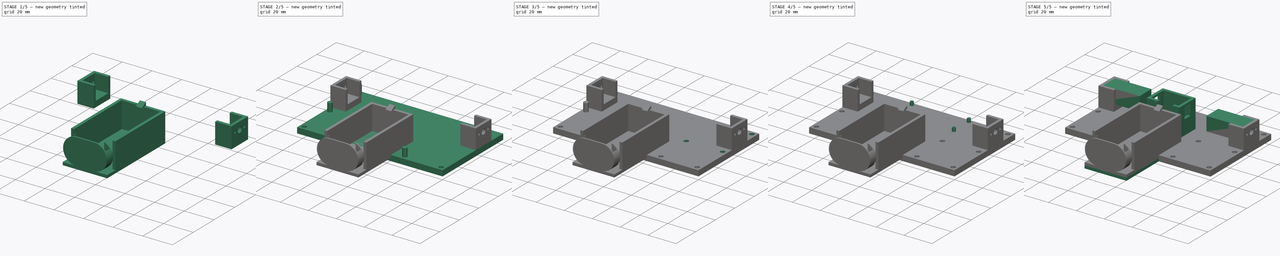
[diagram: build sequence overview — one tinted view per stage of 5, left to right]
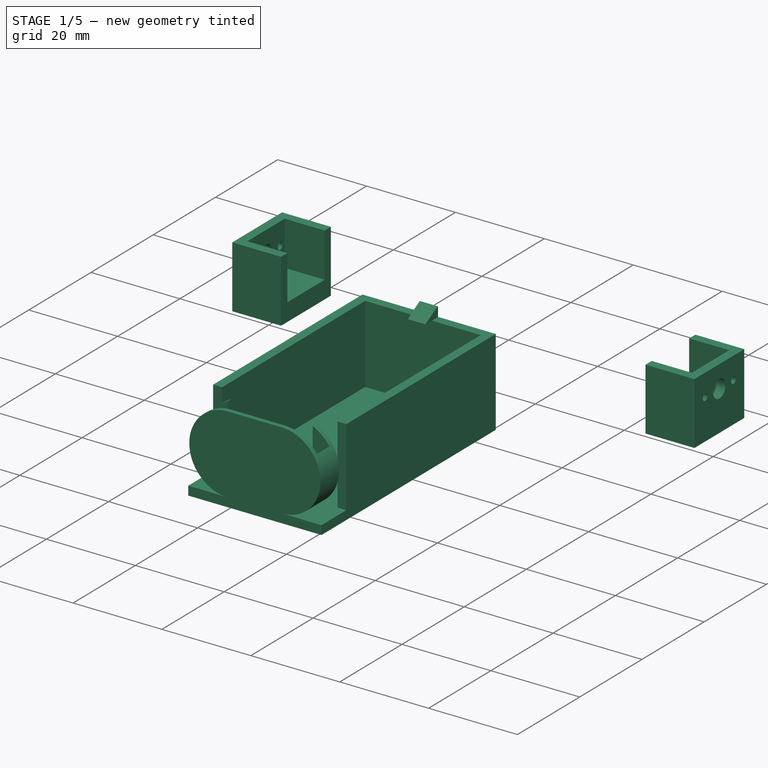
[diagram: stage 1 of 5 — iso view after this stage's code; geometry added in this stage tinted green]
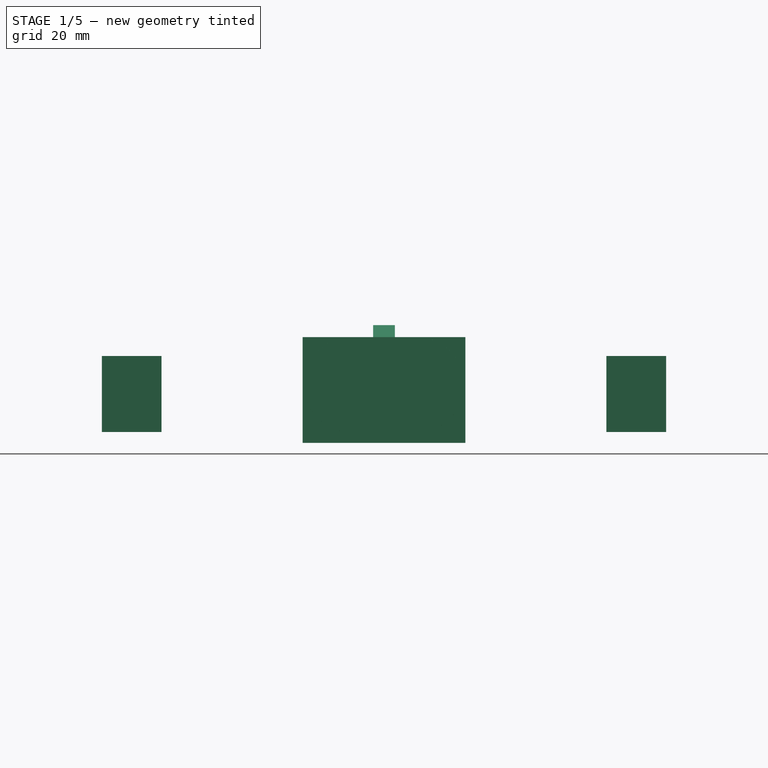
[diagram: stage 1 of 5 — front view after this stage's code; geometry added in this stage tinted green]
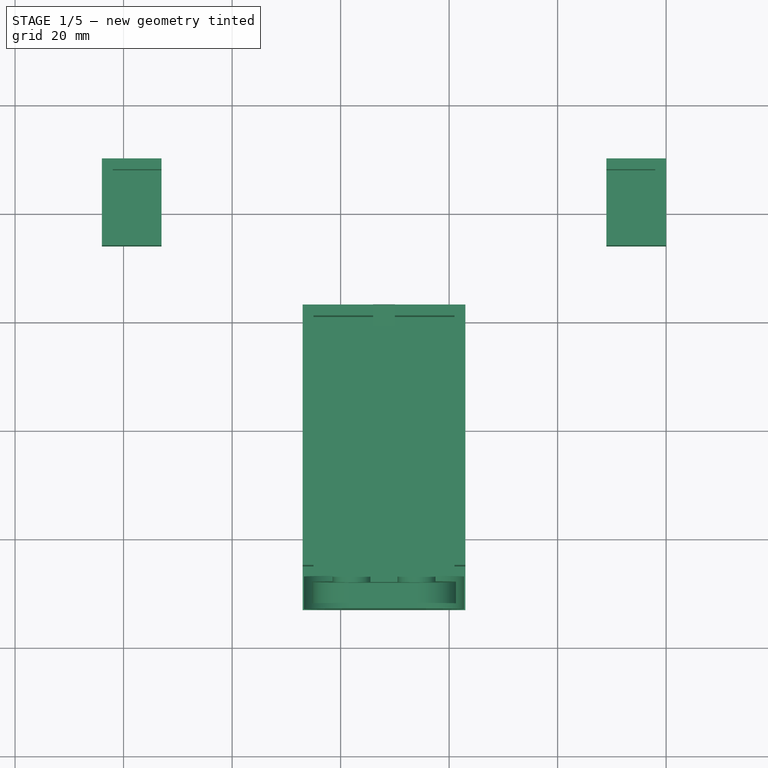
[diagram: stage 1 of 5 — top view after this stage's code; geometry added in this stage tinted green]
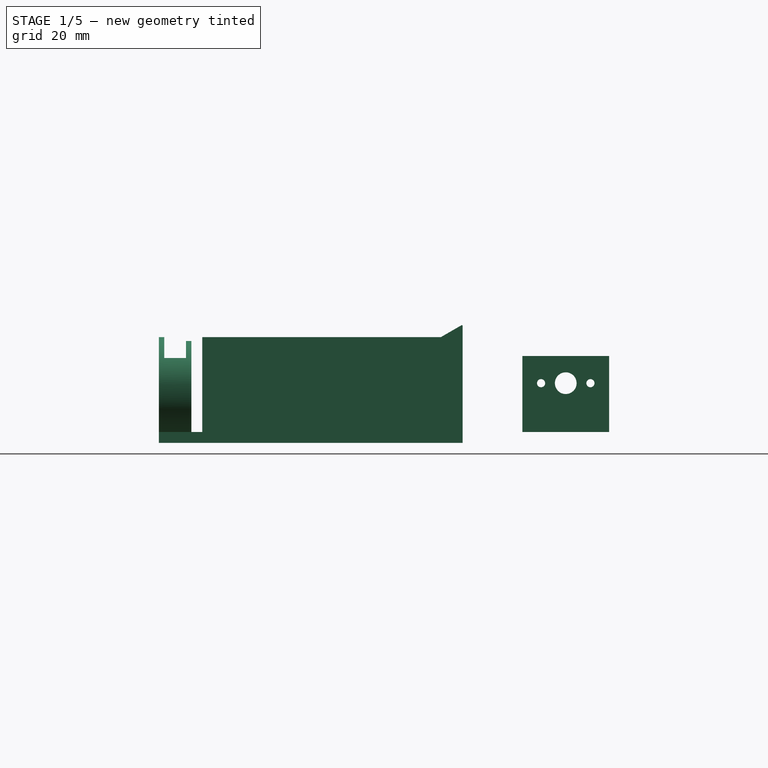
[diagram: stage 1 of 5 — right view after this stage's code; geometry added in this stage tinted green]
FCSTD DOCUMENT  (FreeCAD 1.0R39319 (Git))
Label: Primary Platform
License: All rights reserved
LicenseURL: https://en.wikipedia.org/wiki/All_rights_reserved
objects: Part::Cut×11, Part::Cylinder×10, Part::Box×7, Part::MultiFuse×6, Sketcher::SketchObject×2, Part::Extrusion×2, Part::FeaturePython×2, Part::Fuse×1, Part::Mirroring×1
note: 44 computed .brp shape members not serialized (recipe doc carries the construction recipe); baked Part::Feature solids carry a one-line shape summary decoded from their .brp

FEATURE [Sketcher::SketchObject] Sketch003
  ArcFitTolerance = 1e-06
  FullyConstrained = true
  MakeInternals = false
  sketch-geometry (7):
    g0: LineSegment StartX=0 StartY=0 StartZ=0 EndX=12 EndY=0 EndZ=0
    g1: LineSegment StartX=12 StartY=0 StartZ=0 EndX=12 EndY=16 EndZ=0
    g2: LineSegment StartX=12 StartY=16 StartZ=0 EndX=0 EndY=16 EndZ=0
    g3: LineSegment StartX=0 StartY=16 StartZ=0 EndX=0 EndY=0 EndZ=0
    g4: Circle CenterX=7 CenterY=8 CenterZ=0 NormalX=0 NormalY=0 NormalZ=1 AngleXU=0 Radius=2
    g5: Circle CenterX=7 CenterY=3.45 CenterZ=0 NormalX=0 NormalY=0 NormalZ=1 AngleXU=0 Radius=0.75
    g6: Circle CenterX=7 CenterY=12.55 CenterZ=0 NormalX=0 NormalY=0 NormalZ=1 AngleXU=0 Radius=0.75
  constraints (19):
    c: Coincident(g0,g1)
    c: Coincident(g1,g2)
    c: Coincident(g2,g3)
    c: Coincident(g3,g0)
    c: Horizontal(g0)
    c: Horizontal(g2)
    c: Vertical(g1)
    c: Vertical(g3)
    c: Distance(g1,g3) = 12
    c: Distance(g0,g2) = 16
    c: Coincident(g0,g-1)
    c: Diameter(g4) = 4
    c: Distance(g4,g3) = 7
    c: Distance(g4,g0) = 8
    c: Diameter(g5) = 1.5
    c: Diameter(g6) = 1.5
    c: Vertical(g5,g4)
    c: Distance(g6,g2) = 3.45
    c: Symmetric(g5,g6,g4)
FEATURE [Part::Extrusion] Extrude003
  Base = -> Sketch003
  Dir = (0,0,1)
  DirMode = 2
  FaceMakerClass = Part::FaceMakerBullseye
  FaceMakerMode = 3
  LengthFwd = 11
  LengthRev = 0
  Solid = true
  Symmetric = false
FEATURE [Part::Box] Box002  label="Cube002"
  AttacherType = Attacher::AttachEngine3D
  Height = 30
  Length = 12
  Placement = pos=(2,2,2) rot=(0,0,1;0rad)
  Width = 12
FEATURE [Part::Cut] Cut013  label="MotorMount"
  Base = -> Extrude003
  Placement = pos=(0,23,6) rot=(0,-1,0;1.5708rad)
  Tool = -> Box002
FEATURE [Part::Box] Box  label="Motor Platform"
  AttacherType = Attacher::AttachEngine3D
  Height = 2
  Length = 11
  Placement = pos=(-11,23,4) rot=(0,0,1;0rad)
  Width = 16
FEATURE [Part::Fuse] Fusion  label="Motor"
  Base = -> Cut013
  Placement = pos=(0,11,0) rot=(0,0,1;0rad)
  Tool = -> Box
FEATURE [Part::Mirroring] Part__Mirroring  label="Motor (Mirror #1)"
  Base = (-52,0,0)
  Normal = (1,0,0)
  Source = -> Fusion
FEATURE [Part::MultiFuse] Fusion005  label="Motors"
  Shapes = -> [Fusion,Part__Mirroring]
FEATURE [Part::FeaturePython] Clone002  label="Battery Holder"  # WARN: FeaturePython — macro-defined, semantics opaque (R4)
  AttacherType = Attacher::AttachEngine3D
  Fuse = false
  Placement = pos=(-52,-33,4) rot=(0,0,1;0rad)
  Scale = (1,1,1)
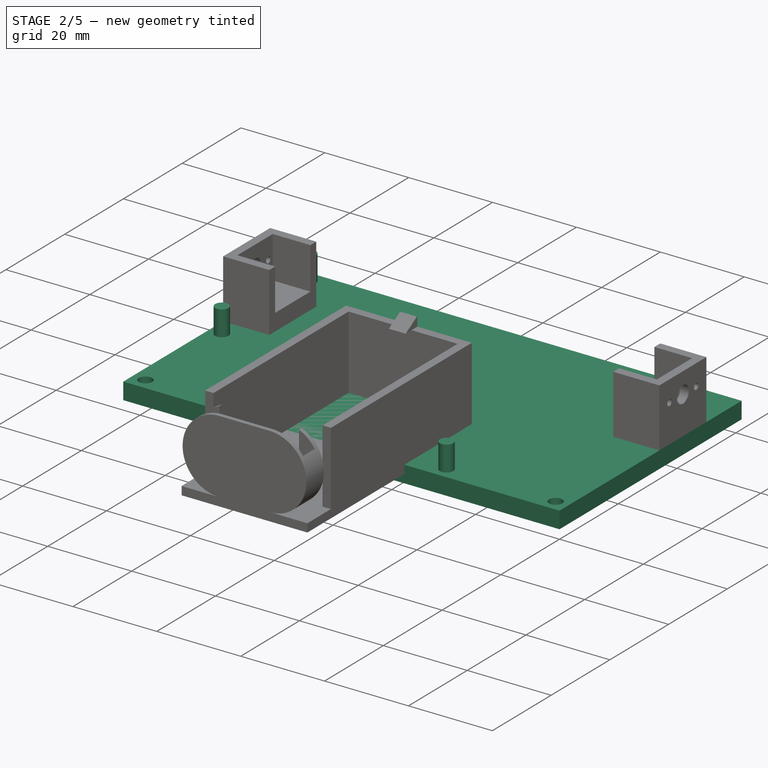
[diagram: stage 2 of 5 — iso view after this stage's code; geometry added in this stage tinted green]
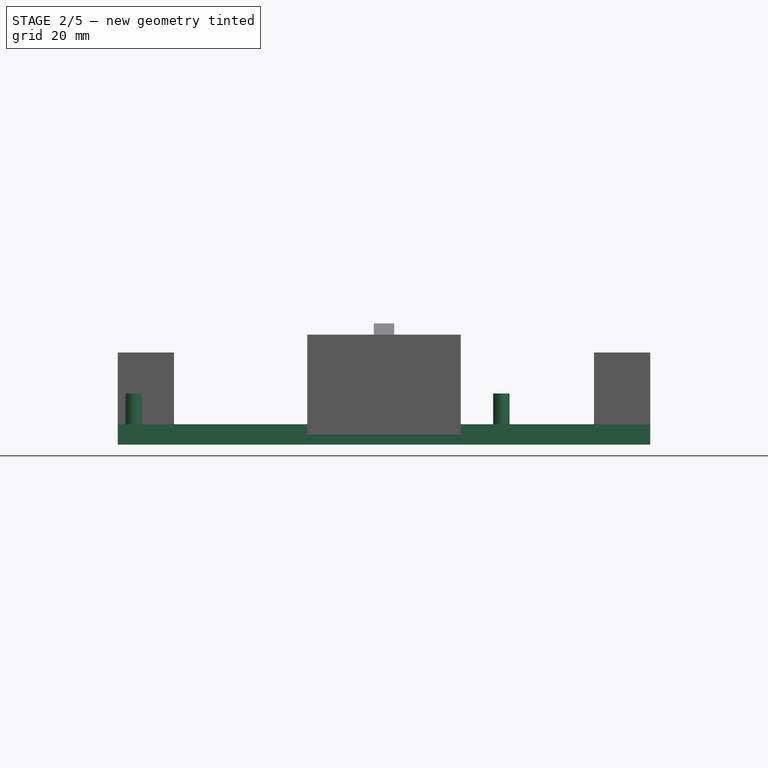
[diagram: stage 2 of 5 — front view after this stage's code; geometry added in this stage tinted green]
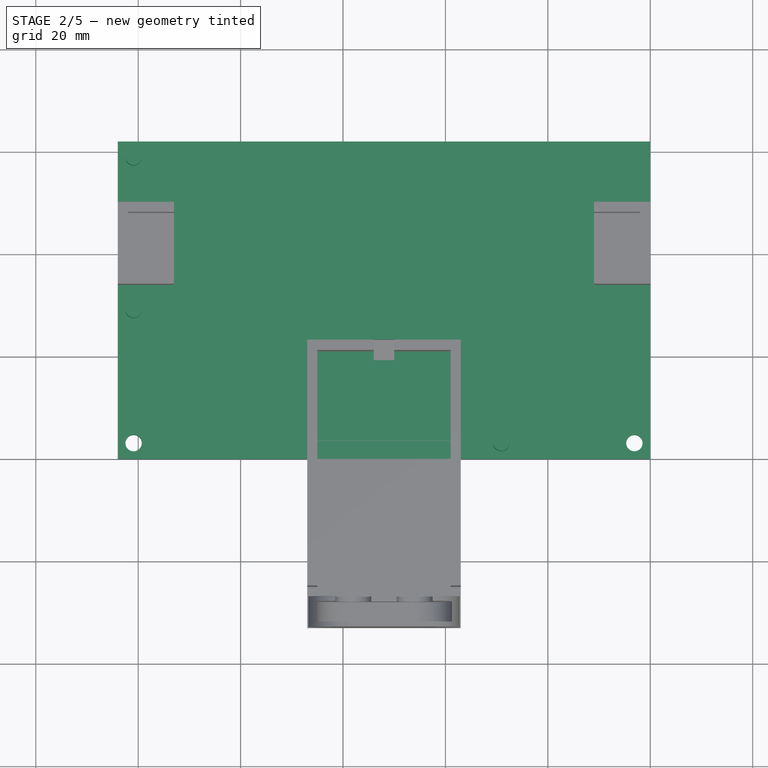
[diagram: stage 2 of 5 — top view after this stage's code; geometry added in this stage tinted green]
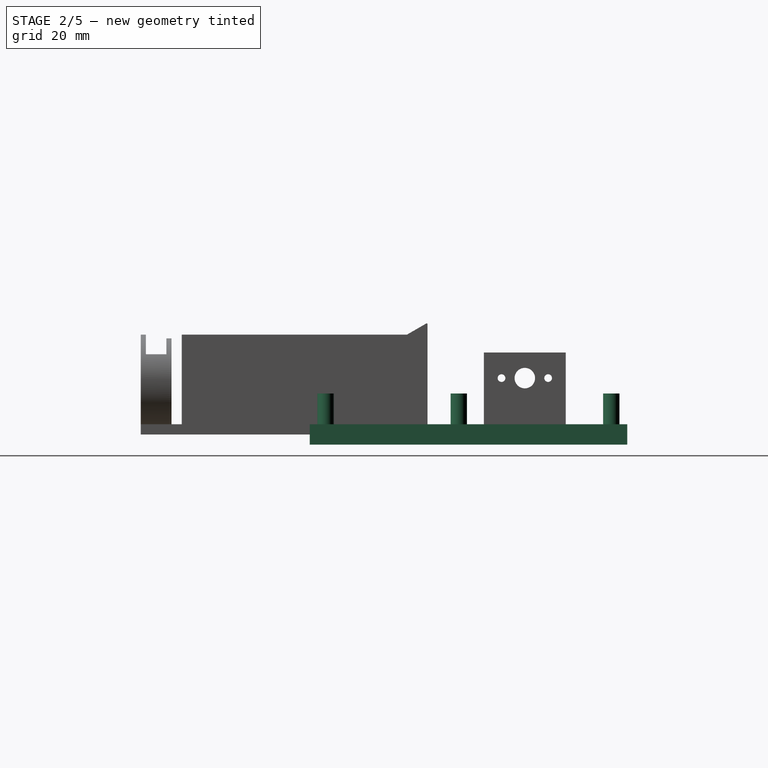
[diagram: stage 2 of 5 — right view after this stage's code; geometry added in this stage tinted green]
FEATURE [Part::Box] Box001  label="Cube001"
  AttacherType = Attacher::AttachEngine3D
  Height = 4
  Length = 104
  Placement = pos=(-104,0,0) rot=(0,0,1;0rad)
  Width = 62
FEATURE [Part::Cylinder] Cylinder004  label="Mount Point"
  Angle = 360
  AttacherType = Attacher::AttachEngine3D
  FirstAngle = 0
  Height = 10
  Placement = pos=(-3.1,3.1,0) rot=(0,0,1;0rad)
  Radius = 1.6
  SecondAngle = 0
FEATURE [Part::Cylinder] Cylinder005  label="Mount Point001"
  Angle = 360
  AttacherType = Attacher::AttachEngine3D
  FirstAngle = 0
  Height = 10
  Placement = pos=(-100.9,3.1,0) rot=(0,0,1;0rad)
  Radius = 1.6
  SecondAngle = 0
FEATURE [Part::Cylinder] Cylinder006  label="Mount Point002"
  Angle = 360
  AttacherType = Attacher::AttachEngine3D
  FirstAngle = 0
  Height = 10
  Placement = pos=(-100.9,58.9,0) rot=(0,0,1;0rad)
  Radius = 1.6
  SecondAngle = 0
FEATURE [Part::Cut] Cut005
  Base = -> Box001
  Tool = -> Cylinder004
FEATURE [Part::Cut] Cut006
  Base = -> Cut005
  Tool = -> Cylinder005
FEATURE [Part::Cylinder] Cylinder008  label="Mount Point004"
  Angle = 360
  AttacherType = Attacher::AttachEngine3D
  FirstAngle = 0
  Height = 10
  Placement = pos=(-29.1,3.1,0) rot=(0,0,1;0rad)
  Radius = 1.6
  SecondAngle = 0
FEATURE [Part::Cylinder] Cylinder011  label="Mount Point007"
  Angle = 360
  AttacherType = Attacher::AttachEngine3D
  FirstAngle = 0
  Height = 10
  Placement = pos=(-100.9,29.1,0) rot=(0,0,1;0rad)
  Radius = 1.6
  SecondAngle = 0
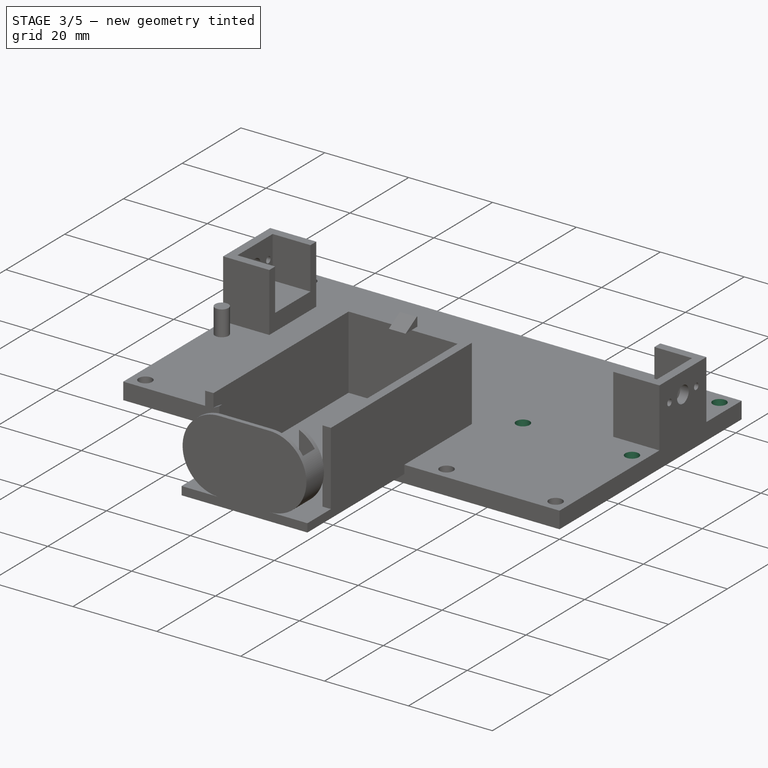
[diagram: stage 3 of 5 — iso view after this stage's code; geometry added in this stage tinted green]
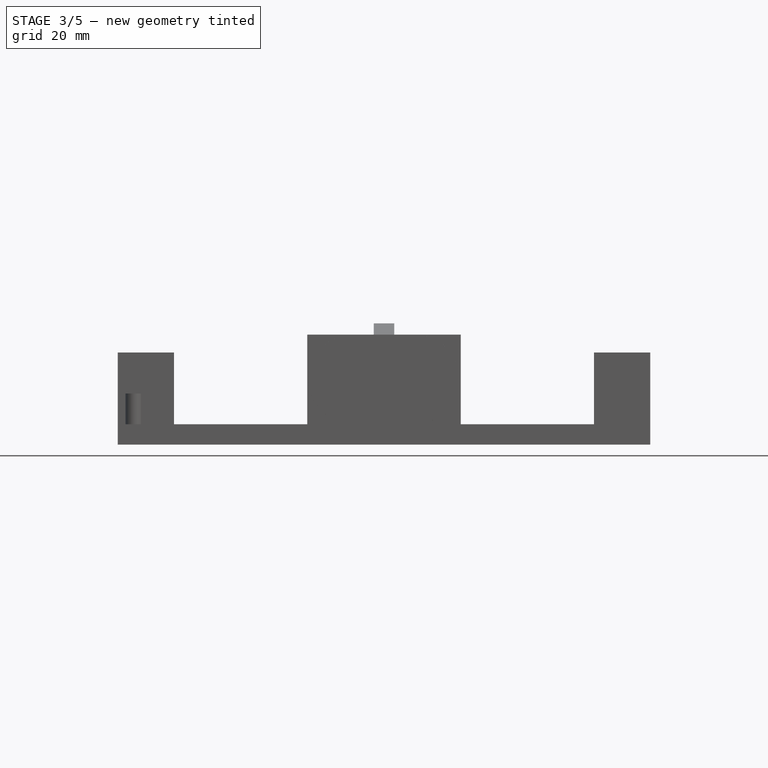
[diagram: stage 3 of 5 — front view after this stage's code; geometry added in this stage tinted green]
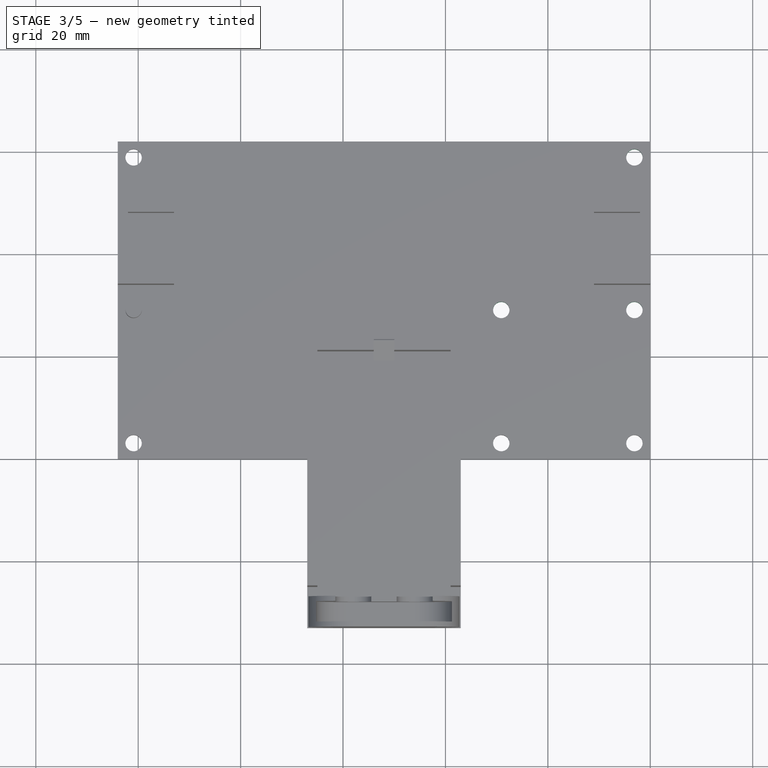
[diagram: stage 3 of 5 — top view after this stage's code; geometry added in this stage tinted green]
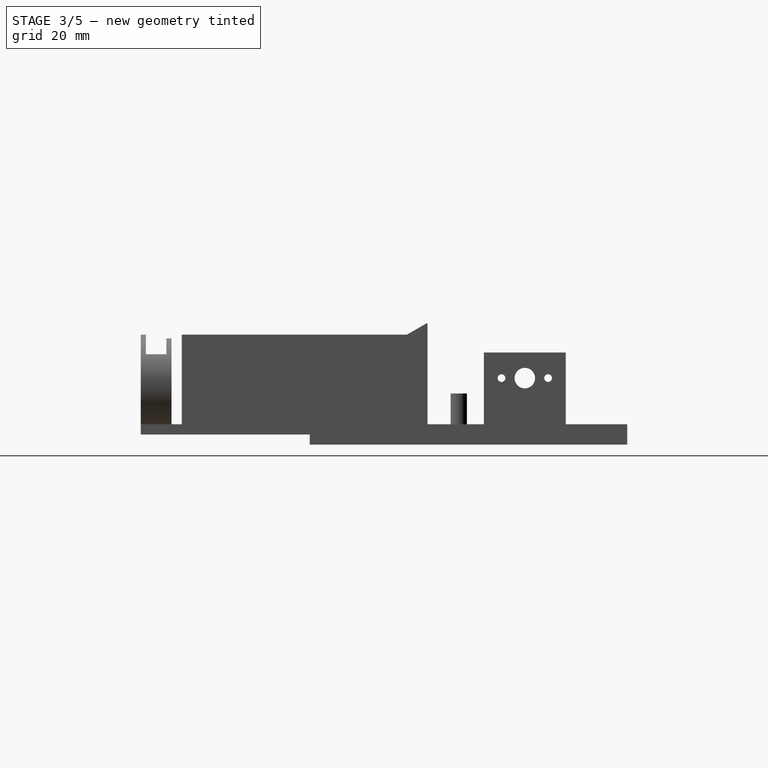
[diagram: stage 3 of 5 — right view after this stage's code; geometry added in this stage tinted green]
FEATURE [Part::Cylinder] Cylinder007  label="Mount Point003"
  Angle = 360
  AttacherType = Attacher::AttachEngine3D
  FirstAngle = 0
  Height = 10
  Placement = pos=(-3.1,58.9,0) rot=(0,0,1;0rad)
  Radius = 1.6
  SecondAngle = 0
FEATURE [Part::Cut] Cut007
  Base = -> Cut006
  Tool = -> Cylinder006
FEATURE [Part::Cut] Cut008  label="Standard Platform"
  Base = -> Cut007
  Tool = -> Cylinder007
FEATURE [Part::Cylinder] Cylinder009  label="Mount Point005"
  Angle = 360
  AttacherType = Attacher::AttachEngine3D
  FirstAngle = 0
  Height = 10
  Placement = pos=(-29.1,29.1,0) rot=(0,0,1;0rad)
  Radius = 1.6
  SecondAngle = 0
FEATURE [Part::Cylinder] Cylinder010  label="Mount Point006"
  Angle = 360
  AttacherType = Attacher::AttachEngine3D
  FirstAngle = 0
  Height = 10
  Placement = pos=(-3.1,29.1,0) rot=(0,0,1;0rad)
  Radius = 1.6
  SecondAngle = 0
FEATURE [Part::Cut] Cut
  Base = -> Cut008
  Tool = -> Cylinder008
FEATURE [Part::Cut] Cut014
  Base = -> Cut
  Tool = -> Cylinder010
FEATURE [Part::Cut] Cut015
  Base = -> Cut014
  Tool = -> Cylinder009
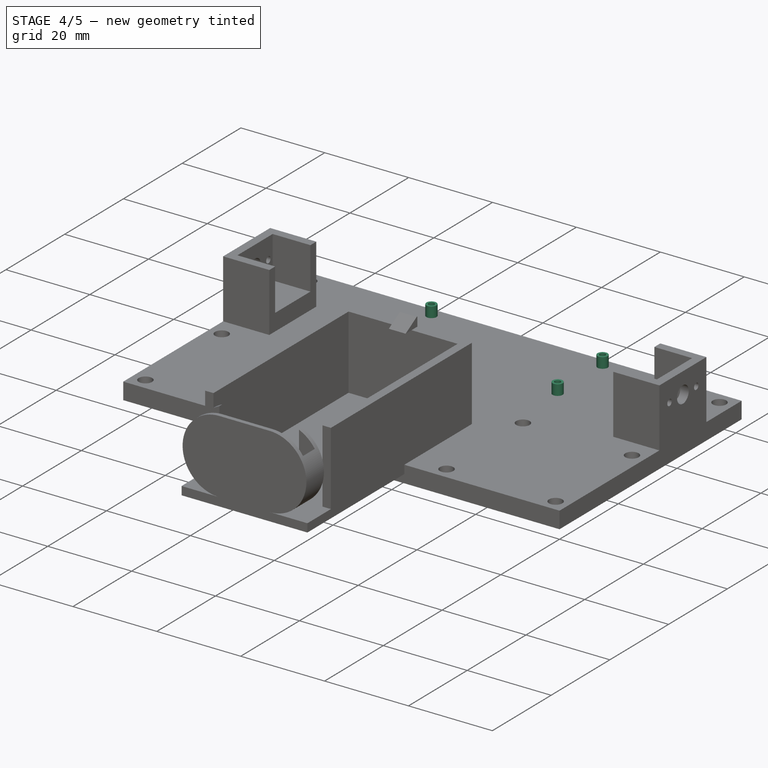
[diagram: stage 4 of 5 — iso view after this stage's code; geometry added in this stage tinted green]
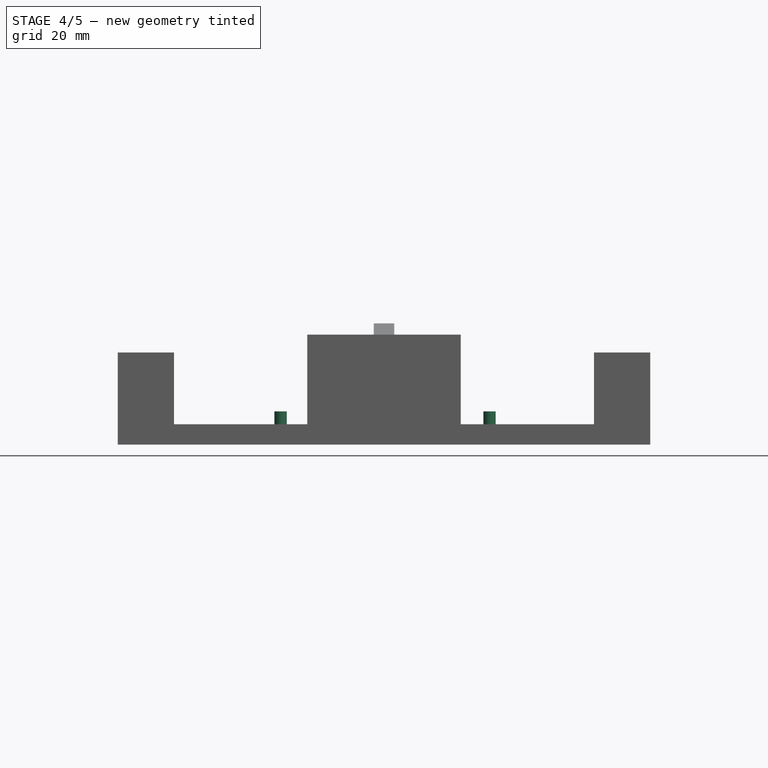
[diagram: stage 4 of 5 — front view after this stage's code; geometry added in this stage tinted green]
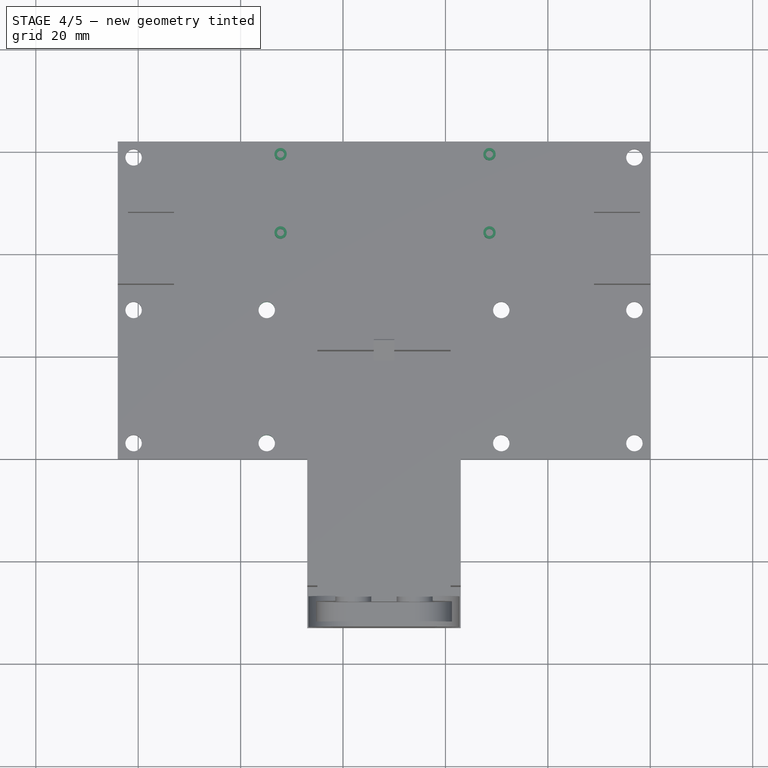
[diagram: stage 4 of 5 — top view after this stage's code; geometry added in this stage tinted green]
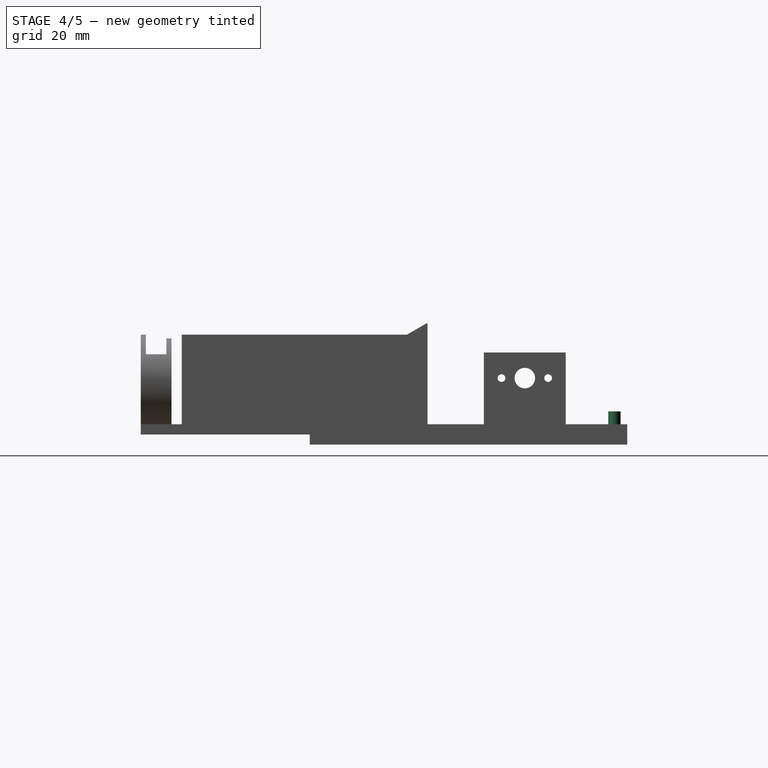
[diagram: stage 4 of 5 — right view after this stage's code; geometry added in this stage tinted green]
FEATURE [Sketcher::SketchObject] Sketch004
  ArcFitTolerance = 1e-06
  FullyConstrained = true
  MakeInternals = false
  sketch-geometry (8):
    g0: Circle CenterX=16.5 CenterY=1.2 CenterZ=0 NormalX=0 NormalY=0 NormalZ=1 AngleXU=0 Radius=0.7
    g1: Circle CenterX=16.5 CenterY=1.2 CenterZ=0 NormalX=0 NormalY=0 NormalZ=1 AngleXU=0 Radius=1.2
    g2: Circle CenterX=1.2 CenterY=1.2 CenterZ=0 NormalX=0 NormalY=0 NormalZ=1 AngleXU=0 Radius=0.7
    g3: Circle CenterX=1.2 CenterY=1.2 CenterZ=0 NormalX=0 NormalY=0 NormalZ=1 AngleXU=0 Radius=1.2
    g4: Circle CenterX=1.2 CenterY=42 CenterZ=0 NormalX=0 NormalY=0 NormalZ=1 AngleXU=0 Radius=0.7
    g5: Circle CenterX=1.2 CenterY=42 CenterZ=0 NormalX=0 NormalY=0 NormalZ=1 AngleXU=0 Radius=1.2
    g6: Circle CenterX=16.5 CenterY=42 CenterZ=0 NormalX=0 NormalY=0 NormalZ=1 AngleXU=0 Radius=0.7
    g7: Circle CenterX=16.5 CenterY=42 CenterZ=0 NormalX=0 NormalY=0 NormalZ=1 AngleXU=0 Radius=1.2
  constraints (20):
    c: Diameter(g0) = 1.4
    c: Diameter(g1) = 2.4
    c: Coincident(g1,g0)
    c: Diameter(g2) = 1.4
    c: Diameter(g3) = 2.4
    c: Coincident(g3,g2)
    c: Horizontal(g2,g0)
    c: Diameter(g4) = 1.4
    c: Diameter(g5) = 2.4
    c: Coincident(g5,g4)
    c: Diameter(g6) = 1.4
    c: Diameter(g7) = 2.4
    c: Coincident(g7,g6)
    c: Vertical(g6,g0)
    c: Horizontal(g4,g6)
    c: Vertical(g4,g2)
    c: DistanceX(g4,g6) = 15.3
    c: DistanceY(g0,g6) = 40.8
    c: Distance(g2,g-1) = 1.2
    c: Distance(g2,g-2) = 1.2
FEATURE [Part::Extrusion] Extrude004
  Base = -> Sketch004
  Dir = (0,0,1)
  DirMode = 2
  FaceMakerClass = Part::FaceMakerBullseye
  FaceMakerMode = 3
  LengthFwd = 2.5
  LengthRev = 0
  Solid = true
  Symmetric = false
FEATURE [Part::Box] Box003  label="Base"
  AttacherType = Attacher::AttachEngine3D
  Height = 2
  Length = 17.7
  Placement = pos=(0,0,-2) rot=(0,0,1;0rad)
  Width = 43.6
FEATURE [Part::MultiFuse] Fusion002  label="Arduino Mount"
  Placement = pos=(-30.2,43,4) rot=(0,0,1;1.5708rad)
  Shapes = -> [Extrude004,Box003]
FEATURE [Part::Cylinder] Cylinder012  label="Mount Point008"
  Angle = 360
  AttacherType = Attacher::AttachEngine3D
  FirstAngle = 0
  Height = 10
  Placement = pos=(-74.9,29.1,0) rot=(0,0,1;0rad)
  Radius = 1.6
  SecondAngle = 0
FEATURE [Part::Cylinder] Cylinder013  label="Mount Point009"
  Angle = 360
  AttacherType = Attacher::AttachEngine3D
  FirstAngle = 0
  Height = 10
  Placement = pos=(-74.9,3.1,0) rot=(0,0,1;0rad)
  Radius = 1.6
  SecondAngle = 0
FEATURE [Part::Cut] Cut016
  Base = -> Cut015
  Tool = -> Cylinder011
FEATURE [Part::Cut] Cut017
  Base = -> Cut016
  Tool = -> Cylinder013
FEATURE [Part::Cut] Cut018  label="Platform With H Bridge Holes"
  Base = -> Cut017
  Tool = -> Cylinder012
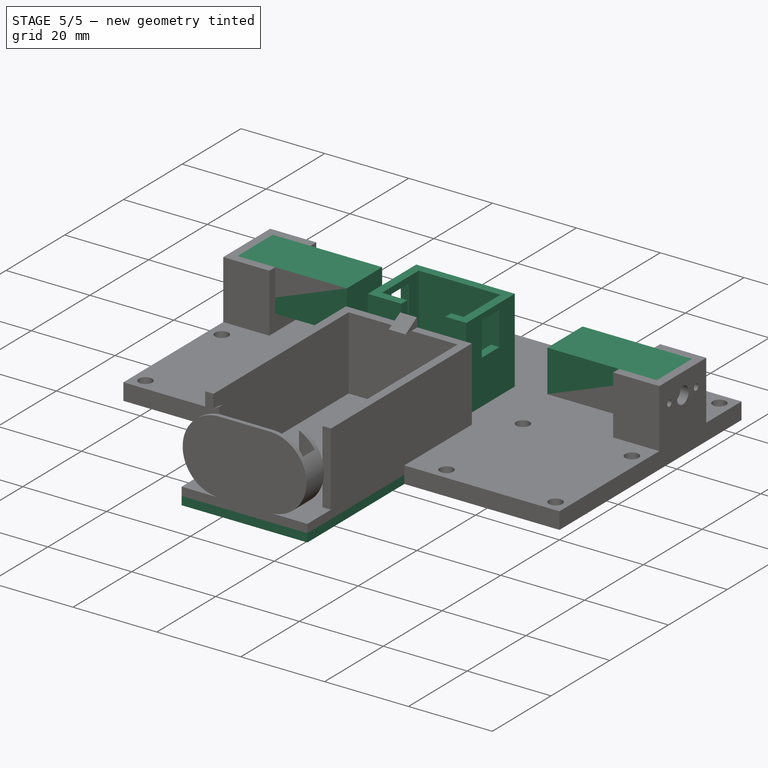
[diagram: stage 5 of 5 — iso view after this stage's code; geometry added in this stage tinted green]
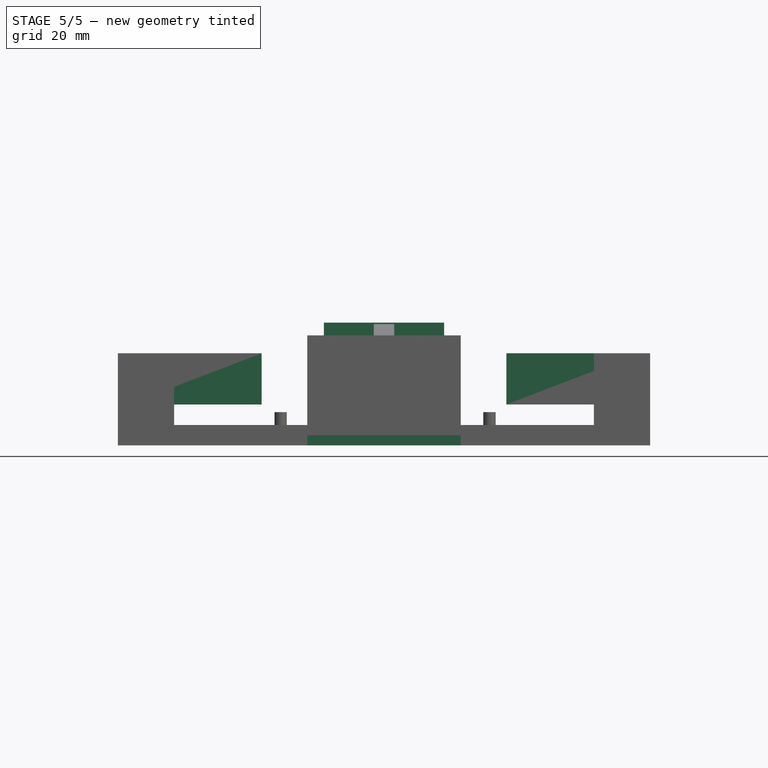
[diagram: stage 5 of 5 — front view after this stage's code; geometry added in this stage tinted green]
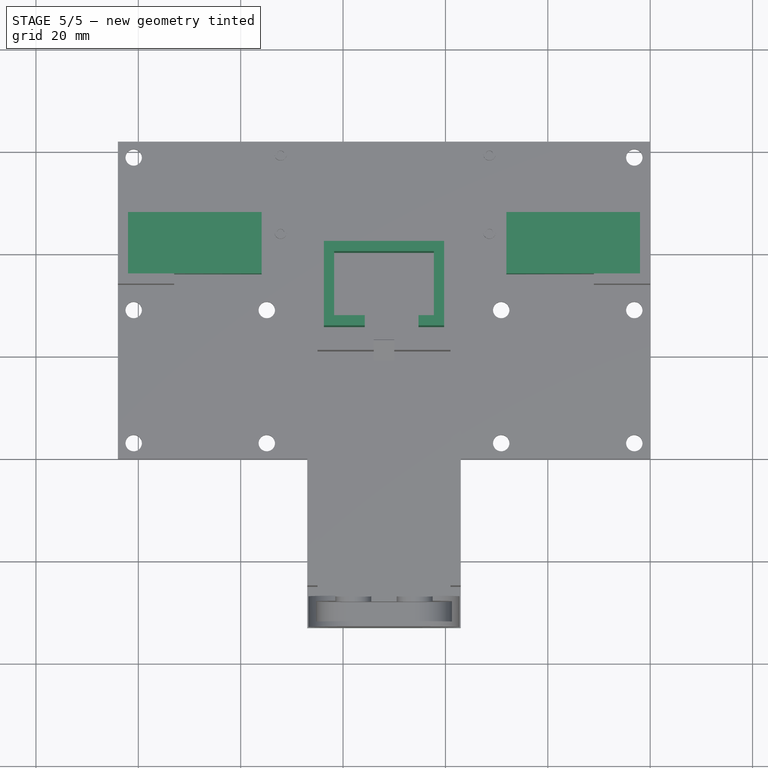
[diagram: stage 5 of 5 — top view after this stage's code; geometry added in this stage tinted green]
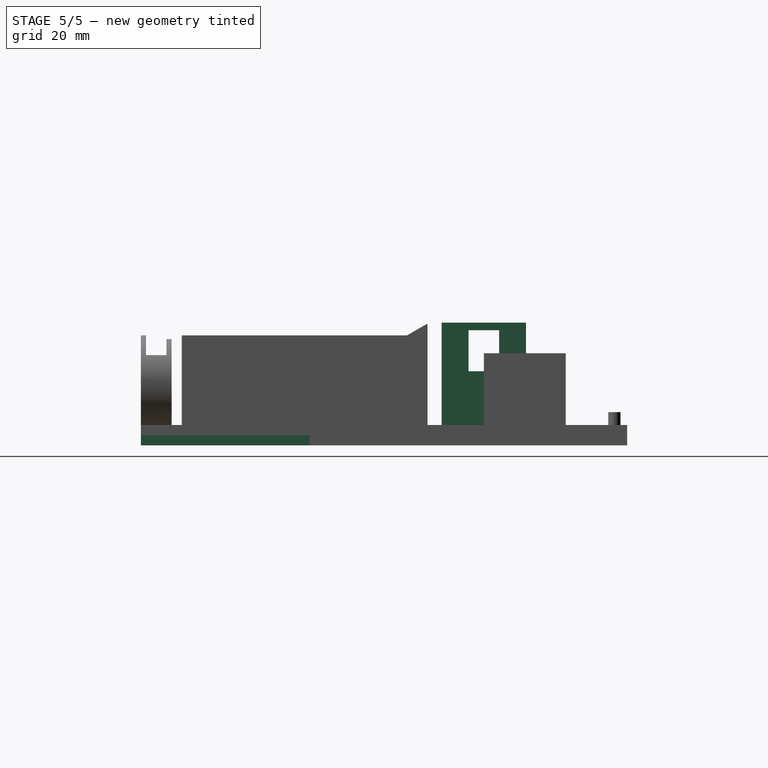
[diagram: stage 5 of 5 — right view after this stage's code; geometry added in this stage tinted green]
FEATURE [Part::Box] Box004  label="Motor001"
  AttacherType = Attacher::AttachEngine3D
  Height = 10
  Length = 26.1
  Placement = pos=(-28.1,36,8) rot=(0,0,1;0rad)
  Width = 12
FEATURE [Part::Box] Box005  label="Motor002"
  AttacherType = Attacher::AttachEngine3D
  Height = 10
  Length = 26.1
  Placement = pos=(-102,36,8) rot=(0,0,1;0rad)
  Width = 12
FEATURE [Part::FeaturePython] Clone001  label="Switch Holder001"  # WARN: FeaturePython — macro-defined, semantics opaque (R4)
  AttacherType = Attacher::AttachEngine3D
  Fuse = false
  Placement = pos=(-52,34,4) rot=(0,0,1;1.5708rad)
  Scale = (1,1,1)
FEATURE [Part::Box] Box006  label="Cube"
  AttacherType = Attacher::AttachEngine3D
  Height = 2
  Length = 30
  Placement = pos=(-67,-33,0) rot=(0,0,1;0rad)
  Width = 33
FEATURE [Part::MultiFuse] Fusion003  label="Platform With Arduino"
  Shapes = -> [Fusion002,Cut018]
FEATURE [Part::MultiFuse] Fusion006  label="Platform With Motors"
  Shapes = -> [Fusion005,Fusion003]
FEATURE [Part::MultiFuse] Fusion007  label="Platform with Switch Holder"
  Shapes = -> [Fusion006,Clone001]
FEATURE [Part::MultiFuse] Fusion008  label="Primary Platform"
  Shapes = -> [Box006,Fusion007,Clone002]
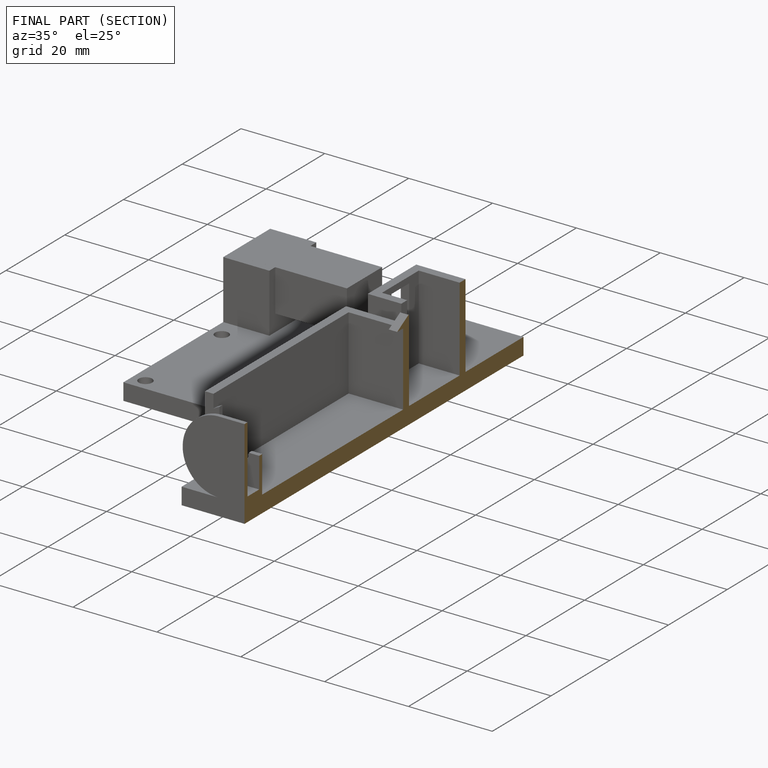
[diagram: finished part — half-section view (interior)]
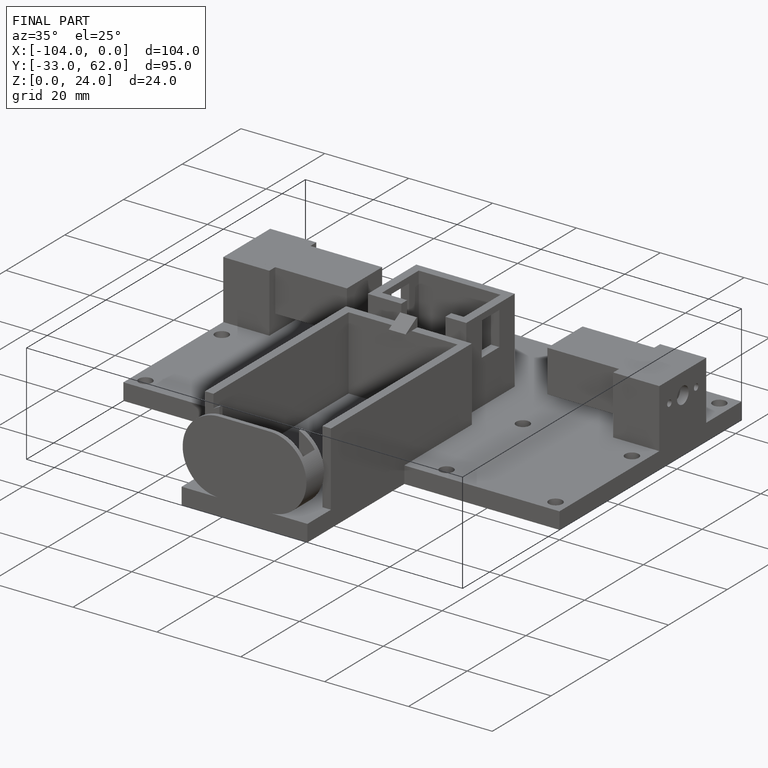
[diagram: finished part — iso view with bounding-box wireframe]
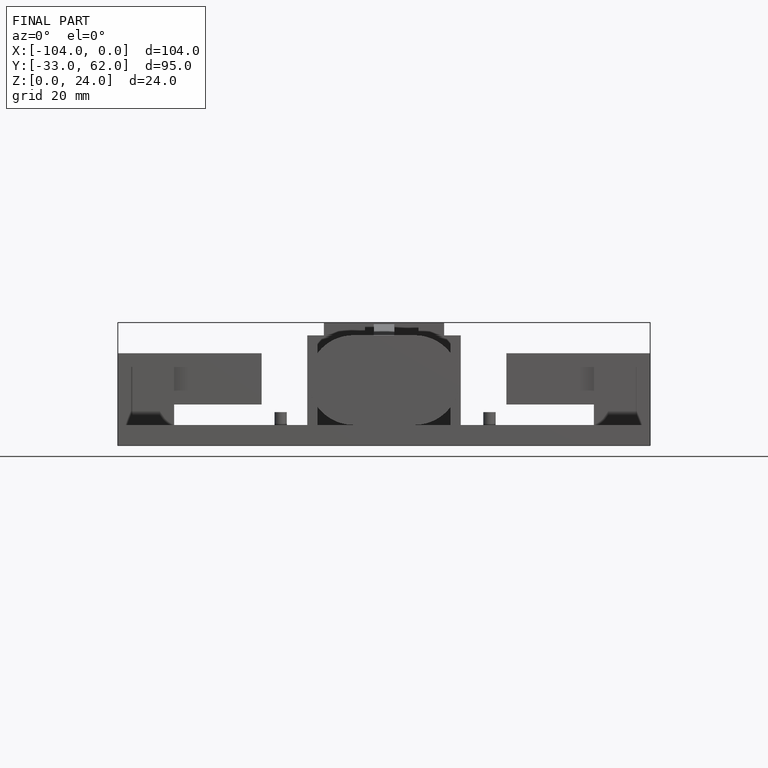
[diagram: finished part — front view with bounding-box wireframe]
